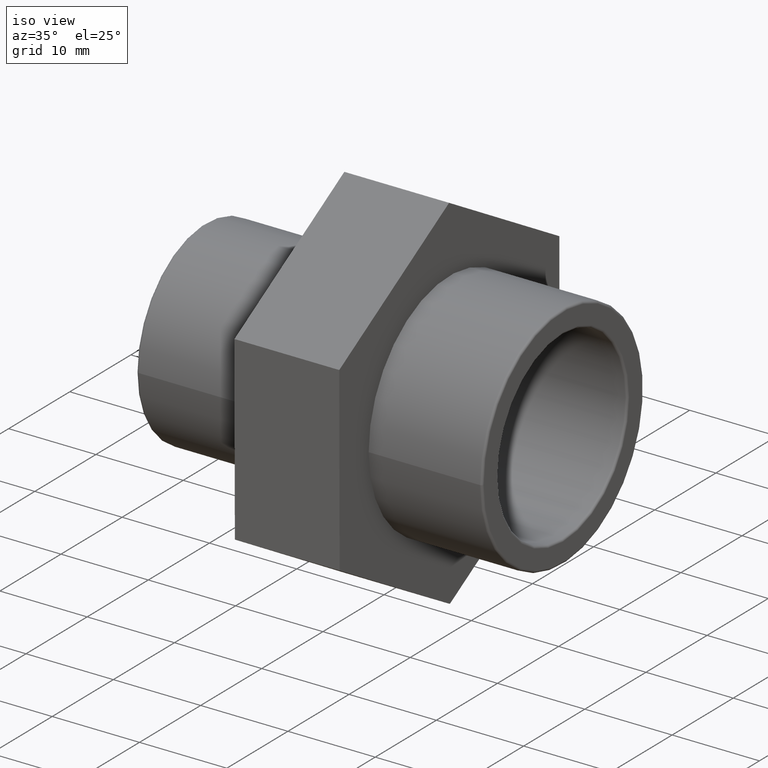
[diagram: clean part render]
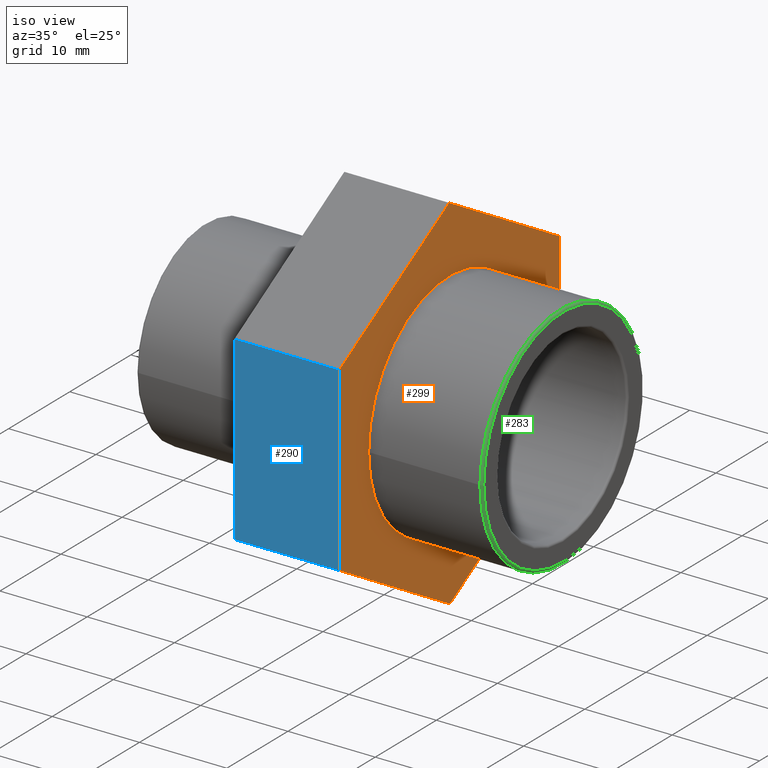
[diagram: same view with three faces highlighted in distinct colors, each labeled with its STEP entity id]
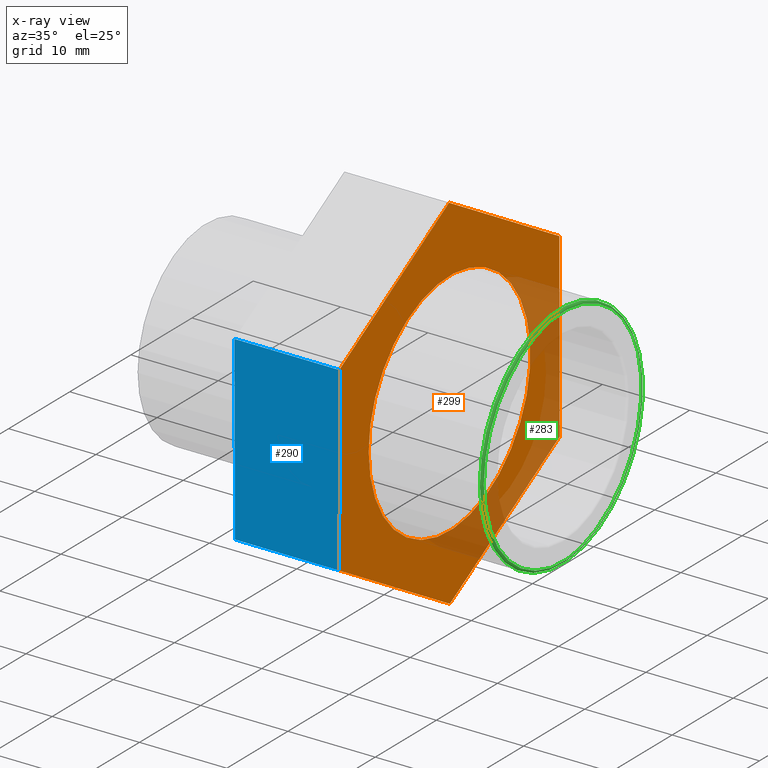
[diagram: x-ray of the same camera — body ghosted, the three highlighted faces saturated]
A machine part, iso view with three faces highlighted in distinct colors.
The next image is the same camera in x-ray (body ghosted, the three faces saturated) — at least one of them is partly hidden behind the body in this view.
Their STEP definitions:

[orange] entity #299 — the highlighted planar face has unit normal (1, 0, 0).
#17=LINE('',#470,#35);
#21=LINE('',#477,#39);
#24=LINE('',#483,#42);
#27=LINE('',#491,#45);
#30=LINE('',#495,#48);
#32=LINE('',#498,#50);
#35=VECTOR('',#388,20.7846096908266);
#39=VECTOR('',#394,20.7846096908266);
#42=VECTOR('',#399,20.7846096908266);
#45=VECTOR('',#404,20.7846096908266);
#48=VECTOR('',#409,20.7846096908266);
#50=VECTOR('',#413,20.7846096908266);
#66=PLANE('',#336);
#81=FACE_BOUND('',#137,.T.);
#102=FACE_OUTER_BOUND('',#136,.T.);
#136=EDGE_LOOP('',(#262,#263,#264,#265,#266,#267));
#137=EDGE_LOOP('',(#268));
#145=CIRCLE('',#313,13.2205);
#159=VERTEX_POINT('',#444);
#168=VERTEX_POINT('',#467);
#169=VERTEX_POINT('',#469);
#171=VERTEX_POINT('',#475);
#173=VERTEX_POINT('',#481);
#176=VERTEX_POINT('',#488);
#177=VERTEX_POINT('',#490);
#185=EDGE_CURVE('',#159,#159,#145,.T.);
#194=EDGE_CURVE('',#168,#169,#17,.T.);
#198=EDGE_CURVE('',#171,#168,#21,.T.);
#201=EDGE_CURVE('',#173,#171,#24,.T.);
#204=EDGE_CURVE('',#176,#177,#27,.T.);
#207=EDGE_CURVE('',#169,#176,#30,.T.);
#209=EDGE_CURVE('',#177,#173,#32,.T.);
#262=ORIENTED_EDGE('',*,*,#207,.F.);
#263=ORIENTED_EDGE('',*,*,#194,.F.);
#264=ORIENTED_EDGE('',*,*,#198,.F.);
#265=ORIENTED_EDGE('',*,*,#201,.F.);
#266=ORIENTED_EDGE('',*,*,#209,.F.);
#267=ORIENTED_EDGE('',*,*,#204,.F.);
#268=ORIENTED_EDGE('',*,*,#185,.T.);
#299=ADVANCED_FACE('',(#102,#81),#66,.T.);
#313=AXIS2_PLACEMENT_3D('',#445,#360,#361);
#336=AXIS2_PLACEMENT_3D('',#506,#424,#425);
#360=DIRECTION('center_axis',(-1.,-1.83697019872103E-16,0.));
#361=DIRECTION('ref_axis',(0.,0.,1.));
#388=DIRECTION('',(5.44336326563452E-19,-0.00296322894591562,0.999995609627469));
#394=DIRECTION('',(1.59357755523959E-16,-0.867503216083255,0.497431573269339));
#399=DIRECTION('',(1.58813419197395E-16,-0.864539987137336,-0.502564036358129));
#404=DIRECTION('',(-1.59357755523959E-16,0.867503216083254,-0.497431573269341));
#409=DIRECTION('',(-1.58813419197395E-16,0.864539987137336,0.50256403635813));
#413=DIRECTION('',(-5.44336326564238E-19,0.0029632289459199,-0.999995609627469));
#424=DIRECTION('center_axis',(1.,1.83697019872103E-16,0.));
#425=DIRECTION('ref_axis',(0.,0.,-1.));
#444=CARTESIAN_POINT('',(7.50000000000001,-13.2205,0.));
#445=CARTESIAN_POINT('Origin',(7.5,5.14351655641888E-15,0.));
#467=CARTESIAN_POINT('',(7.50000000000001,-17.9691261947618,-10.4455973403501));
#469=CARTESIAN_POINT('',(7.50000000000001,-18.0307157518272,10.338921098297));
#470=CARTESIAN_POINT('',(7.50000000000001,-17.9691261947618,-10.4455973403501));
#475=CARTESIAN_POINT('',(7.5,0.0615895570654794,-20.7845184386472));
#477=CARTESIAN_POINT('',(7.5,0.0615895570654794,-20.7845184386472));
#481=CARTESIAN_POINT('',(7.5,18.0307157518273,-10.3389210982971));
#483=CARTESIAN_POINT('',(7.5,18.0307157518273,-10.3389210982971));
#488=CARTESIAN_POINT('',(7.5,-0.0615895570654601,20.7845184386471));
#490=CARTESIAN_POINT('',(7.5,17.9691261947618,10.4455973403501));
#491=CARTESIAN_POINT('',(7.5,-0.0615895570654601,20.7845184386471));
#495=CARTESIAN_POINT('',(7.50000000000001,-18.0307157518272,10.338921098297));
#498=CARTESIAN_POINT('',(7.5,17.9691261947618,10.4455973403501));
#506=CARTESIAN_POINT('Origin',(7.50000000000001,-18.,0.));

[blue] entity #290 — the highlighted planar face has unit normal (0, -1, -0.003).
#15=LINE('',#466,#33);
#16=LINE('',#468,#34);
#17=LINE('',#470,#35);
#18=LINE('',#471,#36);
#33=VECTOR('',#386,20.7846096908266);
#34=VECTOR('',#387,12.);
#35=VECTOR('',#388,20.7846096908266);
#36=VECTOR('',#389,12.);
#58=PLANE('',#325);
#93=FACE_OUTER_BOUND('',#124,.T.);
#124=EDGE_LOOP('',(#232,#233,#234,#235));
#166=VERTEX_POINT('',#464);
#167=VERTEX_POINT('',#465);
#168=VERTEX_POINT('',#467);
#169=VERTEX_POINT('',#469);
#192=EDGE_CURVE('',#166,#167,#15,.T.);
#193=EDGE_CURVE('',#168,#167,#16,.T.);
#194=EDGE_CURVE('',#168,#169,#17,.T.);
#195=EDGE_CURVE('',#169,#166,#18,.T.);
#232=ORIENTED_EDGE('',*,*,#192,.T.);
#233=ORIENTED_EDGE('',*,*,#193,.F.);
#234=ORIENTED_EDGE('',*,*,#194,.T.);
#235=ORIENTED_EDGE('',*,*,#195,.T.);
#290=ADVANCED_FACE('',(#93),#58,.T.);
#325=AXIS2_PLACEMENT_3D('',#463,#384,#385);
#384=DIRECTION('center_axis',(1.23357572259165E-16,-0.999995609627469,-0.00296322894591562));
#385=DIRECTION('ref_axis',(0.,-0.00296322894591547,0.999995609627469));
#386=DIRECTION('',(-5.44336326563452E-19,0.00296322894591562,-0.999995609627469));
#387=DIRECTION('',(-1.,-1.23358113847239E-16,0.));
#388=DIRECTION('',(5.44336326563452E-19,-0.00296322894591562,0.999995609627469));
#389=DIRECTION('',(-1.,-1.23358113847239E-16,0.));
#463=CARTESIAN_POINT('Origin',(7.50000000000001,-17.9691261947618,-10.4455973403501));
#464=CARTESIAN_POINT('',(-4.5,-18.0307157518272,10.338921098297));
#465=CARTESIAN_POINT('',(-4.5,-17.9691261947618,-10.4455973403501));
#466=CARTESIAN_POINT('',(-4.49999999999999,-17.9845235840282,-5.24946773068832));
#467=CARTESIAN_POINT('',(7.50000000000001,-17.9691261947618,-10.4455973403501));
#468=CARTESIAN_POINT('',(7.50000000000001,-17.9691261947618,-10.4455973403501));
#469=CARTESIAN_POINT('',(7.50000000000001,-18.0307157518272,10.338921098297));
#470=CARTESIAN_POINT('',(7.50000000000001,-17.9691261947618,-10.4455973403501));
#471=CARTESIAN_POINT('',(7.50000000000001,-18.0307157518272,10.338921098297));

[green] entity #283 — the highlighted toroidal blend (fillet) surface has major radius 12.9561 mm and minor (blend) radius 0.2644 mm.
#71=FACE_BOUND('',#111,.T.);
#86=FACE_OUTER_BOUND('',#110,.T.);
#110=EDGE_LOOP('',(#218));
#111=EDGE_LOOP('',(#219));
#142=CIRCLE('',#307,12.95609);
#144=CIRCLE('',#311,13.2205);
#156=VERTEX_POINT('',#435);
#158=VERTEX_POINT('',#441);
#182=EDGE_CURVE('',#156,#156,#142,.T.);
#184=EDGE_CURVE('',#158,#158,#144,.T.);
#218=ORIENTED_EDGE('',*,*,#182,.T.);
#219=ORIENTED_EDGE('',*,*,#184,.T.);
#277=TOROIDAL_SURFACE('',#310,12.95609,0.26441);
#283=ADVANCED_FACE('',(#86,#71),#277,.T.);
#307=AXIS2_PLACEMENT_3D('',#436,#348,#349);
#310=AXIS2_PLACEMENT_3D('',#440,#354,#355);
#311=AXIS2_PLACEMENT_3D('',#442,#356,#357);
#348=DIRECTION('center_axis',(-1.,-1.83697019872103E-16,0.));
#349=DIRECTION('ref_axis',(-1.83697019872103E-16,1.,6.12323399573677E-17));
#354=DIRECTION('center_axis',(-1.,-1.83697019872103E-16,0.));
#355=DIRECTION('ref_axis',(0.,0.,1.));
#356=DIRECTION('center_axis',(1.,1.83697019872103E-16,0.));
#357=DIRECTION('ref_axis',(-1.83700530718772E-16,1.,6.12323399573677E-17));
#435=CARTESIAN_POINT('',(20.5,-12.95609,7.93331707398252E-16));
#436=CARTESIAN_POINT('Origin',(20.5,7.53157781475622E-15,0.));
#440=CARTESIAN_POINT('Origin',(20.23559,7.48300648573184E-15,0.));
#441=CARTESIAN_POINT('',(20.23559,-13.2205,-2.42856645121914E-15));
#442=CARTESIAN_POINT('Origin',(20.23559,7.48300648573184E-15,0.));